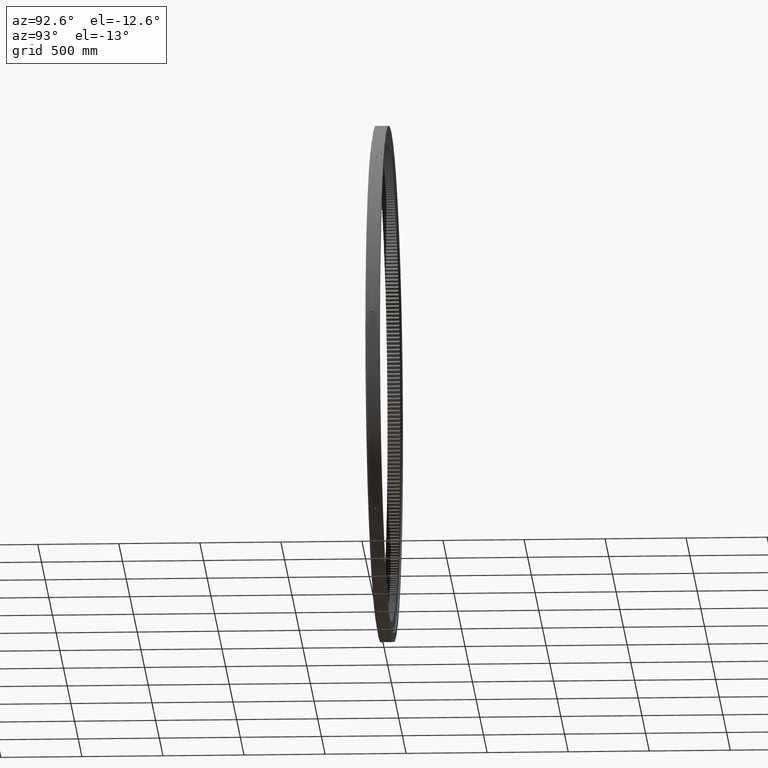
[diagram: clean part render]
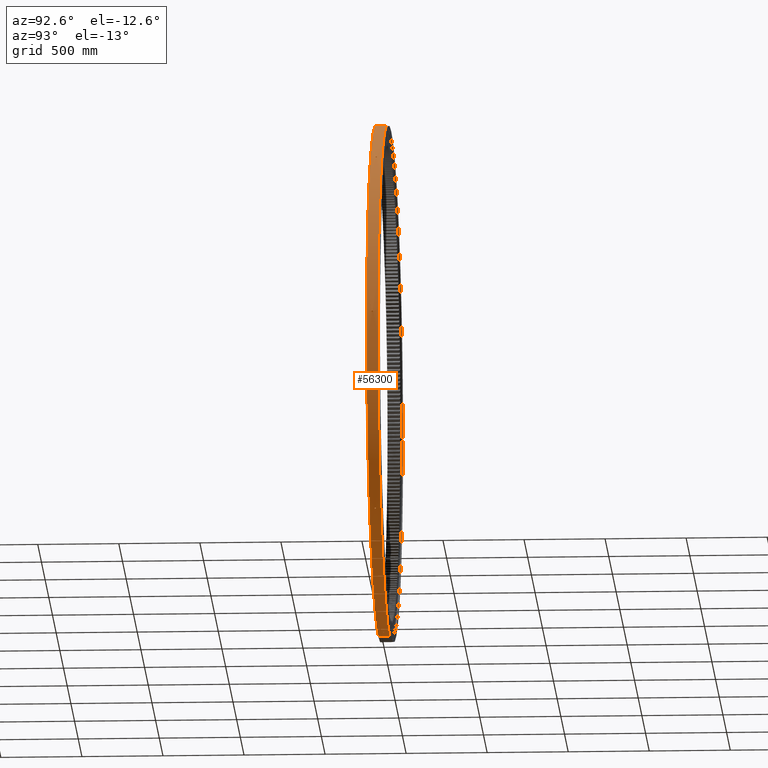
[diagram: same view with one face highlighted and labeled with its STEP entity id]
A machine part, auxiliary view. The second image highlights one B-rep face of the part: STEP entity #56300.
In plain terms, the highlighted cylindrical surface (partial cylindrical patch) has radius 1595 mm, axis along (0, -1, -0).
Its self-contained STEP definition (entity closure, byte-faithful):
#157 = CARTESIAN_POINT ( 'NONE',  ( 1591.584982565571400, -4.500000024368163500, 104.3179911220949700 ) ) ;
#191 = CARTESIAN_POINT ( 'NONE',  ( 1197.262126456714900, -3.431549648896958300, -1053.844568255367200 ) ) ;
#326 = CARTESIAN_POINT ( 'NONE',  ( 107.2271229534437300, 3.448184902226818900, -1591.391659614650700 ) ) ;
#351 = FACE_BOUND ( 'NONE', #9167, .T. ) ;
#592 = CARTESIAN_POINT ( 'NONE',  ( 108.5824699117302700, 1.438640024710587500, -1591.299665259467700 ) ) ;
#917 = CARTESIAN_POINT ( 'NONE',  ( 108.8079411900196000, -0.0005710084534734351500, -1591.284335120721600 ) ) ;
#1194 = CARTESIAN_POINT ( 'NONE',  ( 1591.359814183338400, 2.962314380724804700, 107.6984435171755200 ) ) ;
#1217 = CARTESIAN_POINT ( 'NONE',  ( 108.8016886211565300, -0.2571248973279439100, -1591.285199668105900 ) ) ;
#1322 = CARTESIAN_POINT ( 'NONE',  ( 1048.269111794850200, -0.001198387348096671300, 1202.146778104215400 ) ) ;
#1324 = CARTESIAN_POINT ( 'NONE',  ( 99.94421286973845000, 1.177865452787461500, -1591.867283864363600 ) ) ;
#1595 = CARTESIAN_POINT ( 'NONE',  ( 1048.698258008788100, -2.265791069455416600, 1201.775172557179100 ) ) ;
#1766 = CARTESIAN_POINT ( 'NONE',  ( 1196.216769485691000, -0.2514984799687300400, -1055.030680806861700 ) ) ;
#2255 = CARTESIAN_POINT ( 'NONE',  ( 1055.035669824897000, -2.739567968101367800E-008, 1196.212665363593300 ) ) ;
#2489 = EDGE_CURVE ( 'NONE', #65314, #79631, #57530, .T. ) ;
#2804 = VERTEX_POINT ( 'NONE', #41092 ) ;
#4082 = CARTESIAN_POINT ( 'NONE',  ( 101.2583125015243600, -3.294402693009392400, -1591.782569966173500 ) ) ;
#4129 = CARTESIAN_POINT ( 'NONE',  ( 1591.788944048853400, -3.197407758509164000, 101.1580816884632400 ) ) ;
#4169 = EDGE_LOOP ( 'NONE', ( #72388, #47858, #6057, #56257 ) ) ;
#4366 = CARTESIAN_POINT ( 'NONE',  ( 99.83364071400339400, -0.2514984799865838700, -1591.872338230788700 ) ) ;
#4381 = CARTESIAN_POINT ( 'NONE',  ( 1198.796106184638100, 4.499999975631832100, -1052.099445287768300 ) ) ;
#4423 = CARTESIAN_POINT ( 'NONE',  ( 1591.872840996959400, -0.06619520864764810700, 99.82766618104417900 ) ) ;
#4748 = CARTESIAN_POINT ( 'NONE',  ( 1201.328621111634400, 3.106785645860228300, -1049.206627123427800 ) ) ;
#4765 = CARTESIAN_POINT ( 'NONE',  ( 1049.255156623860600, 3.172686990489168600, 1201.286234148091100 ) ) ;
#5016 = EDGE_CURVE ( 'NONE', #20110, #73221, #66871, .T. ) ;
#5029 = CARTESIAN_POINT ( 'NONE',  ( 1202.146776261541800, 0.0002731160788612569900, -1048.269110268135800 ) ) ;
#5037 = CARTESIAN_POINT ( 'NONE',  ( 1591.732545242217600, 3.932038722735583700, 102.0565147758671000 ) ) ;
#5045 = CARTESIAN_POINT ( 'NONE',  ( 1048.298755811234700, 0.6262473214930401900, 1202.120600015267000 ) ) ;
#5072 = CARTESIAN_POINT ( 'NONE',  ( 1202.146609267668300, -0.06357894050224938100, -1048.269473592704100 ) ) ;
#5312 = CARTESIAN_POINT ( 'NONE',  ( 1591.556985666713000, 4.499999975631846300, 104.7451412550939000 ) ) ;
#5373 = CARTESIAN_POINT ( 'NONE',  ( 1199.184492928978200, -4.500000024368169700, -1051.656575084599100 ) ) ;
#5954 = CARTESIAN_POINT ( 'NONE',  ( 1051.978521671153700, -4.500000024368264700, 1198.902153350228900 ) ) ;
#6057 = ORIENTED_EDGE ( 'NONE', *, *, #78978, .T. ) ;
#6250 = CARTESIAN_POINT ( 'NONE',  ( 1054.003914615676900, -3.238286759096821000, 1197.121859678182100 ) ) ;
#6541 = CARTESIAN_POINT ( 'NONE',  ( 1055.033950223432400, -0.1436216789736150000, 1196.213963109808700 ) ) ;
#6553 = CARTESIAN_POINT ( 'NONE',  ( 1591.285919176941200, -0.3673143356667802900, 108.7936023818094600 ) ) ;
#6880 = CARTESIAN_POINT ( 'NONE',  ( 1197.160688818967600, -3.294402693008184400, -1053.959809976295700 ) ) ;
#7016 = CARTESIAN_POINT ( 'NONE',  ( 107.5024068776480600, 3.172484331763650200, -1591.373065177475600 ) ) ;
#7269 = CARTESIAN_POINT ( 'NONE',  ( 1199.184492928978200, 4.499999975631839200, -1051.656575084599400 ) ) ;
#7301 = EDGE_CURVE ( 'NONE', #14534, #47910, #82593, .T. ) ;
#7306 = CARTESIAN_POINT ( 'NONE',  ( 108.7684987169226800, 0.6260284809457495900, -1591.286784959932900 ) ) ;
#7531 = CARTESIAN_POINT ( 'NONE',  ( 1055.035669824897000, -2.739567968101367800E-008, 1196.212665363593300 ) ) ;
#7633 = CARTESIAN_POINT ( 'NONE',  ( 1591.523179662626300, 4.439736969396898700, 105.2568805644874500 ) ) ;
#7647 = CARTESIAN_POINT ( 'NONE',  ( 108.8079411102492900, 0.0001644125467779746100, -1591.284333951851100 ) ) ;
#7923 = CARTESIAN_POINT ( 'NONE',  ( 1591.347322861507100, 2.738034137860664100, 107.8829709428432700 ) ) ;
#7942 = CARTESIAN_POINT ( 'NONE',  ( 108.7720436949230800, -0.5871622389637735100, -1591.287705011971200 ) ) ;
#8043 = CARTESIAN_POINT ( 'NONE',  ( 100.7270566776401100, 2.765460214107008200, -1591.818225438491300 ) ) ;
#8302 = EDGE_CURVE ( 'NONE', #26163, #17360, #76444, .T. ) ;
#8326 = CARTESIAN_POINT ( 'NONE',  ( 1049.576475161524300, -3.598288527161696700, 1201.007284052720900 ) ) ;
#8482 = CARTESIAN_POINT ( 'NONE',  ( 1196.213397424717900, -0.1107752720367792800, -1055.034628656994800 ) ) ;
#8637 = ORIENTED_EDGE ( 'NONE', *, *, #49310, .F. ) ;
#8968 = CARTESIAN_POINT ( 'NONE',  ( 1054.948920508952100, 1.177865452787462600, 1196.291381830051300 ) ) ;
#9092 = EDGE_LOOP ( 'NONE', ( #27905, #41309, #40220, #69056 ) ) ;
#9167 = EDGE_LOOP ( 'NONE', ( #83593, #8637, #50906, #80074 ) ) ;
#10389 = EDGE_CURVE ( 'NONE', #17918, #61269, #31354, .T. ) ;
#10511 = CARTESIAN_POINT ( 'NONE',  ( 103.3785405565048400, -4.439702520761025000, -1591.646292158910900 ) ) ;
#10569 = CARTESIAN_POINT ( 'NONE',  ( 1591.646292158905700, -4.439702520778180200, 103.3785405565916600 ) ) ;
#10803 = CARTESIAN_POINT ( 'NONE',  ( 101.1705298368401900, -3.209744266266198600, -1591.788152875573400 ) ) ;
#10857 = CARTESIAN_POINT ( 'NONE',  ( 1591.789667398138800, -3.186076360708302200, 101.1466993568949400 ) ) ;
#11097 = CARTESIAN_POINT ( 'NONE',  ( 99.82846475522221400, -0.1107752720465600100, -1591.872745375209000 ) ) ;
#11155 = CARTESIAN_POINT ( 'NONE',  ( 1591.872924666912200, -0.02249341135530112300, 99.82725710846367000 ) ) ;
#11381 = CARTESIAN_POINT ( 'NONE',  ( 1051.656575084595300, 4.499999975631744100, 1199.184492928981900 ) ) ;
#11455 = DIRECTION ( 'NONE',  ( 1.173697223544192200E-016, -1.000000000000000000, -3.494217355385783800E-017 ) ) ;
#11470 = CARTESIAN_POINT ( 'NONE',  ( 1201.415491006057200, 2.962531083878329900, -1049.107158914350700 ) ) ;
#11483 = CARTESIAN_POINT ( 'NONE',  ( 1049.234767033757000, 3.145278498895814200, 1201.304043212008100 ) ) ;
#11515 = EDGE_CURVE ( 'NONE', #61269, #54273, #83683, .T. ) ;
#11735 = CARTESIAN_POINT ( 'NONE',  ( 1591.584982565571400, 4.499999975631845400, 104.3179911220949700 ) ) ;
#11765 = EDGE_CURVE ( 'NONE', #79631, #58532, #46086, .T. ) ;
#11766 = CARTESIAN_POINT ( 'NONE',  ( 1591.623508188772100, 4.499999975631845400, 103.7302036976026500 ) ) ;
#11779 = CARTESIAN_POINT ( 'NONE',  ( 1048.269003066273900, 0.09451856463356191100, 1202.146645311551100 ) ) ;
#11798 = CARTESIAN_POINT ( 'NONE',  ( 1202.142979293662800, -0.2567976739094111100, -1048.274129140256500 ) ) ;
#12146 = VERTEX_POINT ( 'NONE', #33136 ) ;
#12923 = CARTESIAN_POINT ( 'NONE',  ( 1054.035191020982000, -3.197407758508025400, 1197.094322088454600 ) ) ;
#13204 = CARTESIAN_POINT ( 'NONE',  ( 1055.035260948998700, -0.06619520863885425300, 1196.212900362289700 ) ) ;
#13221 = CARTESIAN_POINT ( 'NONE',  ( 1591.289358273121500, -0.7330188356979863200, 108.7504853333205500 ) ) ;
#13259 = CARTESIAN_POINT ( 'NONE',  ( 1198.563553492658500, -4.439702520758528300, -1052.364219379323900 ) ) ;
#13553 = CARTESIAN_POINT ( 'NONE',  ( 1197.102564814594200, -3.209744266265888200, -1054.025829406858500 ) ) ;
#13672 = CARTESIAN_POINT ( 'NONE',  ( 107.5294159047605800, 3.145073879398830700, -1591.371240568905900 ) ) ;
#13923 = AXIS2_PLACEMENT_3D ( 'NONE', #21168, #67580, #14440 ) ;
#13963 = CARTESIAN_POINT ( 'NONE',  ( 108.8079265897677600, 0.09437584088325379200, -1591.284165410107600 ) ) ;
#14240 = DIRECTION ( 'NONE',  ( 1.173697223544192200E-016, -1.000000000000000000, -3.494217355385783800E-017 ) ) ;
#14283 = CARTESIAN_POINT ( 'NONE',  ( 1591.448794150026300, 4.014184327729646300, 106.3746114451754600 ) ) ;
#14440 = DIRECTION ( 'NONE',  ( 5.551115123125782700E-017, -3.480322961207387600E-017, 1.000000000000000000 ) ) ;
#14534 = VERTEX_POINT ( 'NONE', #49916 ) ;
#14574 = CARTESIAN_POINT ( 'NONE',  ( 1591.326561711476600, 2.288796848061201800, 108.1888617296782200 ) ) ;
#14596 = CARTESIAN_POINT ( 'NONE',  ( 108.6645640317281200, -1.166356676480627500, -1591.295685753620500 ) ) ;
#14693 = CARTESIAN_POINT ( 'NONE',  ( 1048.269155181663600, -0.01755522773109333800, 1202.146779089530600 ) ) ;
#14696 = CARTESIAN_POINT ( 'NONE',  ( 102.0565147758615400, 3.932038722735474500, -1591.732545242218100 ) ) ;
#14965 = CARTESIAN_POINT ( 'NONE',  ( 1050.770814708510400, -4.382848393356273900, 1199.961107986976000 ) ) ;
#15115 = CARTESIAN_POINT ( 'NONE',  ( 1196.212740296112300, -0.04507731737129712400, -1055.035480072689300 ) ) ;
#15135 = ORIENTED_EDGE ( 'NONE', *, *, #86632, .F. ) ;
#15601 = CARTESIAN_POINT ( 'NONE',  ( 1054.360676798165700, 2.765460214107005500, 1196.810246449620100 ) ) ;
#16931 = CARTESIAN_POINT ( 'NONE',  ( 1591.584982565571400, -4.500000024368163500, 104.3179911220949700 ) ) ;
#17028 = B_SPLINE_CURVE_WITH_KNOTS ( 'NONE', 3,
 ( #64851, #58180, #78269, #38261, #84978, #44990, #5037, #51747, #11766, #58461 ),
 .UNSPECIFIED., .F., .F.,
 ( 4, 2, 2, 2, 4 ),
 ( 0.5001327926868667200, 0.6250995945151500700, 0.7500663963434333100, 0.8750331981717166500, 1.000000000000000000 ),
 .UNSPECIFIED. ) ;
#17202 = CARTESIAN_POINT ( 'NONE',  ( 1591.718501871046600, -4.013417103109413000, 102.2596337892571900 ) ) ;
#17360 = VERTEX_POINT ( 'NONE', #73779 ) ;
#17450 = CARTESIAN_POINT ( 'NONE',  ( 101.1497920139296800, -3.189160287234549700, -1591.789470869469800 ) ) ;
#17465 = CARTESIAN_POINT ( 'NONE',  ( 1196.212665363590100, -2.739558418392090200E-008, -1055.035669824900900 ) ) ;
#17506 = CARTESIAN_POINT ( 'NONE',  ( 1591.828296422387900, -2.460532258733803900, 100.5374887743919200 ) ) ;
#17565 = VERTEX_POINT ( 'NONE', #62410 ) ;
#17745 = CARTESIAN_POINT ( 'NONE',  ( 99.82739805331768000, -0.04507731737581493300, -1591.872882756927500 ) ) ;
#17795 = CARTESIAN_POINT ( 'NONE',  ( 1591.872952548652600, -0.007205812987911403500, 99.82721568749985900 ) ) ;
#17850 = CARTESIAN_POINT ( 'NONE',  ( 1199.804653960897000, 4.439742744211541100, -1050.949016190000500 ) ) ;
#17860 = CARTESIAN_POINT ( 'NONE',  ( 1051.656575084595300, 4.499999975631744100, 1199.184492928981900 ) ) ;
#17918 = VERTEX_POINT ( 'NONE', #53323 ) ;
#18125 = CARTESIAN_POINT ( 'NONE',  ( 1201.537147945567500, 2.738263488281573700, -1048.967835295780800 ) ) ;
#18140 = CARTESIAN_POINT ( 'NONE',  ( 1049.151769863695300, 3.029408991192229300, 1201.376532315964800 ) ) ;
#18304 = LINE ( 'NONE', #24928, #51778 ) ;
#18459 = CARTESIAN_POINT ( 'NONE',  ( 1202.109734197083500, -0.7327181281982294600, -1048.313252631083100 ) ) ;
#19351 = CARTESIAN_POINT ( 'NONE',  ( 1052.364219379316600, -4.439702520759494700, 1198.563553492664100 ) ) ;
#19635 = CARTESIAN_POINT ( 'NONE',  ( 1054.043751030003500, -3.186076360708539800, 1197.086785049801800 ) ) ;
#19648 = CARTESIAN_POINT ( 'NONE',  ( 1591.284335120718700, -0.0005710068643074166400, 108.8079411900251500 ) ) ;
#19686 = B_SPLINE_CURVE_WITH_KNOTS ( 'NONE', 3,
 ( #50880, #84400, #17850, #64551, #24599, #71281, #31256, #77971, #37961, #84692, #44671, #4748, #51455, #11470, #58174, #18125, #64846, #24882, #71553, #31541, #78263, #38254, #84974, #44985, #5029 ),
 .UNSPECIFIED., .F., .F.,
 ( 4, 2, 2, 2, 2, 1, 1, 1, 2, 2, 2, 2, 2, 4 ),
 ( 0.0000000000000000000, 0.1250459271490333400, 0.1875688907235814100, 0.2500918542981295200, 0.2510687756039750000, 0.2520456969098204800, 0.2539995395215115000, 0.2579072247448952500, 0.2657225951916628600, 0.2813533360851979700, 0.3126148178722544800, 0.3751377814463441300, 0.4376607450204337800, 0.5001837085945234400 ),
 .UNSPECIFIED. ) ;
#19941 = CARTESIAN_POINT ( 'NONE',  ( 1055.035609370585900, -0.02249341135224907200, 1196.212670267885000 ) ) ;
#19956 = CARTESIAN_POINT ( 'NONE',  ( 1591.301732014156900, -1.449584376875645800, 108.5788885954014100 ) ) ;
#19989 = CARTESIAN_POINT ( 'NONE',  ( 1198.902153350223700, -4.500000024368168800, -1051.978521671160000 ) ) ;
#20110 = VERTEX_POINT ( 'NONE', #80346 ) ;
#20116 = CARTESIAN_POINT ( 'NONE',  ( 105.2568805652063000, 4.439736969312988900, -1591.523179662579400 ) ) ;
#20165 = CARTESIAN_POINT ( 'NONE',  ( 104.3179911220894400, 4.499999975631729900, -1591.584982565571900 ) ) ;
#20274 = CARTESIAN_POINT ( 'NONE',  ( 1197.088832921808700, -3.189160287234398300, -1054.041425224487700 ) ) ;
#20407 = CARTESIAN_POINT ( 'NONE',  ( 107.6393547917381000, 3.029196455475076500, -1591.363810674115700 ) ) ;
#21014 = CARTESIAN_POINT ( 'NONE',  ( 1591.391659614796000, 3.448184904012855200, 107.2271229512933000 ) ) ;
#21168 = CARTESIAN_POINT ( 'NONE',  ( 2.601341135008604100E-015, -22.16364734299516900, -7.744460120454373600E-016 ) ) ;
#21302 = CARTESIAN_POINT ( 'NONE',  ( 1591.299665259553400, 1.438640028472520000, 108.5824699104874600 ) ) ;
#21321 = CARTESIAN_POINT ( 'NONE',  ( 108.2416069995418200, -2.265987769573782500, -1591.325031590793300 ) ) ;
#21423 = CARTESIAN_POINT ( 'NONE',  ( 1048.269473592700300, -0.06357894050250180500, 1202.146609267671500 ) ) ;
#21425 = CARTESIAN_POINT ( 'NONE',  ( 103.7302036975970800, 4.499999975631732600, -1591.623508188772100 ) ) ;
#21719 = CARTESIAN_POINT ( 'NONE',  ( 1051.656575084595300, -4.500000024368264700, 1199.184492928981900 ) ) ;
#21874 = CARTESIAN_POINT ( 'NONE',  ( 1196.212660146020000, -0.01171504269939747100, -1055.035647320934500 ) ) ;
#22360 = CARTESIAN_POINT ( 'NONE',  ( 1053.360022913812600, 3.932038722735474500, 1197.689730238377500 ) ) ;
#22995 = CARTESIAN_POINT ( 'NONE',  ( 1591.872963946707400, -2.739557636407724300E-008, 99.82721089295226600 ) ) ;
#23805 = B_SPLINE_CURVE_WITH_KNOTS ( 'NONE', 3,
 ( #47988, #1322, #54743, #14693, #61414, #21423, #68130, #28132, #74797, #34790, #81537, #41498, #1595, #48287, #8326, #55030, #14965, #61712, #21719 ),
 .UNSPECIFIED., .F., .F.,
 ( 4, 2, 1, 1, 1, 1, 1, 2, 2, 2, 2, 4 ),
 ( 0.5001837085945346500, 0.5011599122886857300, 0.5021361159828369200, 0.5040885233711394100, 0.5079933381477446100, 0.5158029677009557900, 0.5314222268073779400, 0.5626607450202254500, 0.6251377814459133700, 0.7500918542972755400, 0.8750459271486377100, 1.000000000000000000 ),
 .UNSPECIFIED. ) ;
#23926 = CARTESIAN_POINT ( 'NONE',  ( 102.5466701354158200, -4.145601375008047800, -1591.700020077305500 ) ) ;
#23980 = CARTESIAN_POINT ( 'NONE',  ( 1591.755028339029200, -3.653221515567290900, 101.6899538530320800 ) ) ;
#24175 = EDGE_CURVE ( 'NONE', #68435, #2804, #23805, .T. ) ;
#24214 = CARTESIAN_POINT ( 'NONE',  ( 100.7923211138022600, -2.830677936484032200, -1591.812184430277700 ) ) ;
#24233 = CARTESIAN_POINT ( 'NONE',  ( 1196.213461656830800, 0.5890485953953412700, -1055.036368145962800 ) ) ;
#24271 = CARTESIAN_POINT ( 'NONE',  ( 1591.858763504873900, -1.437043034201128400, 100.0522471487737400 ) ) ;
#24495 = CARTESIAN_POINT ( 'NONE',  ( 99.82722311627507800, -0.01171504270057433800, -1591.872944344620700 ) ) ;
#24549 = CARTESIAN_POINT ( 'NONE',  ( 1591.872957380995800, -0.004604414827473150100, 99.82721047007171900 ) ) ;
#24599 = CARTESIAN_POINT ( 'NONE',  ( 1200.542370640011300, 4.014239206405103600, -1050.106108271921100 ) ) ;
#24882 = CARTESIAN_POINT ( 'NONE',  ( 1201.738784628826600, 2.289044582971130600, -1048.736835126257300 ) ) ;
#24895 = CARTESIAN_POINT ( 'NONE',  ( 1049.021062674261400, 2.828326222548945200, 1201.490674017285500 ) ) ;
#24922 = CARTESIAN_POINT ( 'NONE',  ( 1202.146776261541800, 0.0002731160788612569900, -1048.269110268135800 ) ) ;
#24928 = CARTESIAN_POINT ( 'NONE',  ( 9.114162734886484400E-014, -22.16364734299522300, 1595.000000000000000 ) ) ;
#25217 = CARTESIAN_POINT ( 'NONE',  ( 1201.997171496609100, -1.449329242002410600, -1048.443311106539800 ) ) ;
#26094 = CARTESIAN_POINT ( 'NONE',  ( 1053.206465919125100, -4.013417103070851000, 1197.823426907099200 ) ) ;
#26163 = VERTEX_POINT ( 'NONE', #20165 ) ;
#26372 = CARTESIAN_POINT ( 'NONE',  ( 1054.501842809070500, -2.460532258711867600, 1196.683322960730700 ) ) ;
#26387 = CARTESIAN_POINT ( 'NONE',  ( 1591.284333951849200, 0.0001644141411306262700, 108.8079411102540200 ) ) ;
#26666 = CARTESIAN_POINT ( 'NONE',  ( 1055.035658374998100, -0.007205812987181987900, 1196.212660694207900 ) ) ;
#26680 = CARTESIAN_POINT ( 'NONE',  ( 1591.347505258397600, -2.765224146039055400, 107.9088368962727300 ) ) ;
#26711 = CARTESIAN_POINT ( 'NONE',  ( 1198.013323652274300, -4.145601375003455000, -1052.990431970579900 ) ) ;
#26999 = CARTESIAN_POINT ( 'NONE',  ( 1196.852123737118500, -2.830677936476460000, -1054.310256234922500 ) ) ;
#27134 = CARTESIAN_POINT ( 'NONE',  ( 107.8124771126514100, 2.828101592828193400, -1591.352097898280400 ) ) ;
#27733 = CARTESIAN_POINT ( 'NONE',  ( 1591.373065177674800, 3.172484334735985000, 107.5024068747057800 ) ) ;
#27754 = CARTESIAN_POINT ( 'NONE',  ( 108.8079343340725800, -0.008689904421740822900, -1591.284350176472300 ) ) ;
#27905 = ORIENTED_EDGE ( 'NONE', *, *, #38922, .F. ) ;
#28015 = CARTESIAN_POINT ( 'NONE',  ( 1591.286784959962500, 0.6260284841563464900, 108.7684987164942900 ) ) ;
#28031 = CARTESIAN_POINT ( 'NONE',  ( 107.0776361697520500, -3.598372993745741200, -1591.403045452660300 ) ) ;
#28132 = CARTESIAN_POINT ( 'NONE',  ( 1048.274129140252600, -0.2567976739096589600, 1202.142979293666700 ) ) ;
#28569 = CARTESIAN_POINT ( 'NONE',  ( 1196.212662096986200, -0.004224121743458180400, -1055.035664641804000 ) ) ;
#29039 = CARTESIAN_POINT ( 'NONE',  ( 1052.099445287764600, 4.499999975631739700, 1198.796106184641500 ) ) ;
#30592 = CARTESIAN_POINT ( 'NONE',  ( 101.8319569972860600, -3.751236669444648200, -1591.745936476745600 ) ) ;
#30642 = CARTESIAN_POINT ( 'NONE',  ( 1591.772809005347900, -3.431549648915654100, 101.4115279454138400 ) ) ;
#30659 = ORIENTED_EDGE ( 'NONE', *, *, #5016, .F. ) ;
#30863 = CARTESIAN_POINT ( 'NONE',  ( 100.1679126970225300, -1.763920608159727600, -1591.851555750366500 ) ) ;
#30885 = CARTESIAN_POINT ( 'NONE',  ( 1196.589832705673200, 2.266285385526720700, -1054.611008152275600 ) ) ;
#30924 = CARTESIAN_POINT ( 'NONE',  ( 1591.870246164689000, -0.6256159857545274800, 99.86659497444003400 ) ) ;
#31152 = CARTESIAN_POINT ( 'NONE',  ( 99.82721224811228900, -0.004224121743821850400, -1591.872957971867000 ) ) ;
#31256 = CARTESIAN_POINT ( 'NONE',  ( 1201.104762801364600, 3.448306740749433000, -1049.462919266193500 ) ) ;
#31271 = CARTESIAN_POINT ( 'NONE',  ( 1050.322358062519900, 4.146168419476181200, 1200.353163994562200 ) ) ;
#31354 = B_SPLINE_CURVE_WITH_KNOTS ( 'NONE', 3,
 ( #26387, #19648, #86232, #73055, #33054, #79789, #39784, #86504, #46516, #6553, #53262, #13221, #59962, #19956, #66639, #26680, #73340, #33342, #80072, #40048, #157 ),
 .UNSPECIFIED., .F., .F.,
 ( 4, 2, 1, 1, 1, 1, 1, 2, 2, 2, 2, 2, 4 ),
 ( 0.5002077525682235800, 0.5006958309348561500, 0.5011839093014888200, 0.5021600660347540500, 0.5041123795012844000, 0.5080170064343451100, 0.5158262603004666300, 0.5314447680327095700, 0.5626817834971953300, 0.6251558144261669700, 0.7501038762841112400, 0.8750519381420556200, 1.000000000000000000 ),
 .UNSPECIFIED. ) ;
#31541 = CARTESIAN_POINT ( 'NONE',  ( 1201.998128961886300, 1.438896447909288500, -1048.439447731605900 ) ) ;
#31563 = CARTESIAN_POINT ( 'NONE',  ( 1048.819858614492700, 2.468410599288049400, 1201.666331362899900 ) ) ;
#31578 = CIRCLE ( 'NONE', #81301, 1595.000000000000000 ) ;
#31872 = CARTESIAN_POINT ( 'NONE',  ( 1201.555764462725200, -2.765068120410617300, -1048.949448117267100 ) ) ;
#31993 = EDGE_CURVE ( 'NONE', #73221, #33816, #80534, .T. ) ;
#32583 = CARTESIAN_POINT ( 'NONE',  ( -4.107940282404704600E-015, 35.00000000000027700, 1.222976074385033900E-015 ) ) ;
#32748 = CARTESIAN_POINT ( 'NONE',  ( 1053.635118578315500, -3.653221515537524100, 1197.446430474314000 ) ) ;
#33037 = CARTESIAN_POINT ( 'NONE',  ( 1054.866503933687000, -1.437043034158052700, 1196.361748797371300 ) ) ;
#33054 = CARTESIAN_POINT ( 'NONE',  ( 1591.284363519316500, -0.01559330112347804200, 108.8079200800836600 ) ) ;
#33136 = CARTESIAN_POINT ( 'NONE',  ( 1591.584982565571400, 4.499999975631845400, 104.3179911220949700 ) ) ;
#33206 = EDGE_LOOP ( 'NONE', ( #15135, #45777, #30659, #72009 ) ) ;
#33329 = CARTESIAN_POINT ( 'NONE',  ( 1055.035665481259700, -0.004604414827580467900, 1196.212660421912000 ) ) ;
#33342 = CARTESIAN_POINT ( 'NONE',  ( 1591.436090535503100, -3.931957555998012200, 106.5795327157697700 ) ) ;
#33379 = CARTESIAN_POINT ( 'NONE',  ( 1197.540412943114000, -3.751236669440329000, -1053.528278274562800 ) ) ;
#33506 = CARTESIAN_POINT ( 'NONE',  ( 106.0878952584033400, 4.146128968359527700, -1591.467917568864800 ) ) ;
#33715 = B_SPLINE_CURVE_WITH_KNOTS ( 'NONE', 3,
 ( #17860, #57895, #71301, #31271, #77987, #37972, #84704, #44685, #4765, #51476, #11483, #58188, #18140, #64858, #24895, #71571, #31563, #78280, #38271, #84986, #44998, #5045, #51759, #11779, #58471 ),
 .UNSPECIFIED., .F., .F.,
 ( 4, 2, 2, 2, 2, 1, 1, 1, 2, 2, 2, 2, 2, 4 ),
 ( 0.0000000000000000000, 0.1250459271499839700, 0.1875688907249759600, 0.2500918542999679400, 0.2510687756058078100, 0.2520456969116476900, 0.2539995395233292700, 0.2579072247466943600, 0.2657225951933969200, 0.2813533360868021300, 0.3126148178736264400, 0.3751377814472625100, 0.4376607450208985800, 0.5001837085945346500 ),
 .UNSPECIFIED. ) ;
#33787 = CARTESIAN_POINT ( 'NONE',  ( 108.0789353225271600, 2.468168814409154700, -1591.334035171874800 ) ) ;
#33816 = VERTEX_POINT ( 'NONE', #7269 ) ;
#33948 = CARTESIAN_POINT ( 'NONE',  ( 1048.269110268132400, 0.0002731160787556435600, 1202.146776261545300 ) ) ;
#34396 = CARTESIAN_POINT ( 'NONE',  ( 1591.371240569103500, 3.145073882399936700, 107.5294159018402700 ) ) ;
#34412 = CARTESIAN_POINT ( 'NONE',  ( 108.8078498307850300, -0.03170113386103502700, -1591.284397034628500 ) ) ;
#34506 = CARTESIAN_POINT ( 'NONE',  ( 99.82721089294740600, -2.739569063866843400E-008, -1591.872963946707800 ) ) ;
#34682 = CARTESIAN_POINT ( 'NONE',  ( 1591.284165410108200, 0.09437584297668084900, 108.8079265897398800 ) ) ;
#34697 = CARTESIAN_POINT ( 'NONE',  ( 105.4934115613015300, -4.382859803229028000, -1591.507808887178500 ) ) ;
#34790 = CARTESIAN_POINT ( 'NONE',  ( 1048.313252631078500, -0.7327181281984608300, 1202.109734197087400 ) ) ;
#34945 = CARTESIAN_POINT ( 'NONE',  ( 1196.261963106816900, -0.8681628797521988600, -1054.979486362710100 ) ) ;
#35227 = CARTESIAN_POINT ( 'NONE',  ( 1196.212665363590100, -2.739558418392090200E-008, -1055.035669824900900 ) ) ;
#35771 = FACE_BOUND ( 'NONE', #33206, .T. ) ;
#36186 = ORIENTED_EDGE ( 'NONE', *, *, #47145, .F. ) ;
#37281 = CARTESIAN_POINT ( 'NONE',  ( 101.4806661344691700, -3.489101883580750600, -1591.768397640372100 ) ) ;
#37331 = CARTESIAN_POINT ( 'NONE',  ( 1591.782569966172600, -3.294402693017203000, 101.2583125015383100 ) ) ;
#37567 = CARTESIAN_POINT ( 'NONE',  ( 99.90179736859190000, -0.8681628797834344300, -1591.868095008134600 ) ) ;
#37592 = CARTESIAN_POINT ( 'NONE',  ( 1197.360303271498400, 3.598500765654093500, -1053.735060965220300 ) ) ;
#37598 = VECTOR ( 'NONE', #11455, 1000.000000000000000 ) ;
#37620 = CARTESIAN_POINT ( 'NONE',  ( 1591.872338230789000, -0.2514984800084052500, 99.83364071401014400 ) ) ;
#37858 = CARTESIAN_POINT ( 'NONE',  ( 99.82721089294740600, -2.739569063866843400E-008, -1591.872963946707800 ) ) ;
#37961 = CARTESIAN_POINT ( 'NONE',  ( 1201.286234148087500, 3.172686990488981600, -1049.255156623864900 ) ) ;
#37972 = CARTESIAN_POINT ( 'NONE',  ( 1049.676388706650000, 3.665395412485254100, 1200.918170189962200 ) ) ;
#38254 = CARTESIAN_POINT ( 'NONE',  ( 1202.120600015266100, 0.6262473214559860500, -1048.298755811235200 ) ) ;
#38261 = CARTESIAN_POINT ( 'NONE',  ( 1591.839380383513100, 2.266285385526740200, 100.3941896266055700 ) ) ;
#38271 = CARTESIAN_POINT ( 'NONE',  ( 1048.527057111520400, 1.766151685862260600, 1201.921794033884000 ) ) ;
#38295 = CARTESIAN_POINT ( 'NONE',  ( 1202.146784151701900, -0.008350268173541154600, -1048.269124380179200 ) ) ;
#38583 = CARTESIAN_POINT ( 'NONE',  ( 1200.678427957997200, -3.931903888289439000, -1049.952065544702700 ) ) ;
#38922 = EDGE_CURVE ( 'NONE', #12146, #17918, #39869, .T. ) ;
#39291 = DIRECTION ( 'NONE',  ( -5.551115123125783900E-017, 8.700807403018468000E-017, -1.000000000000000000 ) ) ;
#39467 = CARTESIAN_POINT ( 'NONE',  ( 1053.844568255362000, -3.431549648897849200, 1197.262126456719000 ) ) ;
#39769 = CARTESIAN_POINT ( 'NONE',  ( 1055.005899311715200, -0.6256159857133383200, 1196.238592352585300 ) ) ;
#39784 = CARTESIAN_POINT ( 'NONE',  ( 1591.284473592968700, -0.06391589159199839700, 108.8075613747650400 ) ) ;
#39869 = B_SPLINE_CURVE_WITH_KNOTS ( 'NONE', 3,
 ( #11735, #5312, #7633, #54330, #14283, #61008, #21014, #67715, #27733, #74392, #34396, #81118, #41100, #1194, #47872, #7923, #54623, #14574, #61302, #21302, #68012, #28015, #74676, #34682, #81421 ),
 .UNSPECIFIED., .F., .F.,
 ( 4, 2, 2, 2, 2, 1, 1, 1, 2, 2, 2, 2, 2, 4 ),
 ( 0.0000000000000000000, 0.1250519381420636400, 0.1875779072130940300, 0.2501038762841243900, 0.2510808445508588300, 0.2520578128175932600, 0.2540117493510634100, 0.2579196224180037600, 0.2657353685518831200, 0.2813668608196404600, 0.3126298453551528100, 0.3751558144261764000, 0.4376817834972000500, 0.5002077525682235800 ),
 .UNSPECIFIED. ) ;
#40048 = CARTESIAN_POINT ( 'NONE',  ( 1591.546454137272300, -4.500000024368166200, 104.9058213441172600 ) ) ;
#40087 = CARTESIAN_POINT ( 'NONE',  ( 1197.307895232962400, -3.489101883577961700, -1053.792560866941100 ) ) ;
#40207 = CARTESIAN_POINT ( 'NONE',  ( 106.9442255211330900, 3.665299363380975200, -1591.410665157945500 ) ) ;
#40220 = ORIENTED_EDGE ( 'NONE', *, *, #11515, .F. ) ;
#40500 = CARTESIAN_POINT ( 'NONE',  ( 108.4665677734379900, 1.765893093894089500, -1591.307635888768600 ) ) ;
#40579 = CARTESIAN_POINT ( 'NONE',  ( 1202.146776261541800, 0.0002731160788612569900, -1048.269110268135800 ) ) ;
#41092 = CARTESIAN_POINT ( 'NONE',  ( 1051.656575084595300, -4.500000024368264700, 1199.184492928981900 ) ) ;
#41100 = CARTESIAN_POINT ( 'NONE',  ( 1591.363810674306700, 3.029196458592387400, 107.6393547889132100 ) ) ;
#41116 = CARTESIAN_POINT ( 'NONE',  ( 108.8063926667291700, -0.1283382115538233800, -1591.284664818444100 ) ) ;
#41309 = ORIENTED_EDGE ( 'NONE', *, *, #80402, .F. ) ;
#41402 = CARTESIAN_POINT ( 'NONE',  ( 104.3179911220894400, -4.500000024368279000, -1591.584982565571900 ) ) ;
#41408 = EDGE_CURVE ( 'NONE', #17565, #65314, #31578, .T. ) ;
#41498 = CARTESIAN_POINT ( 'NONE',  ( 1048.443311106535900, -1.449329242002614900, 1201.997171496612700 ) ) ;
#41648 = CARTESIAN_POINT ( 'NONE',  ( 1196.220094737243000, -0.3358848176164467800, -1055.026883941167400 ) ) ;
#41947 = CARTESIAN_POINT ( 'NONE',  ( 9.264822649626086500E-014, -34.99999999999975100, 1595.000000000000000 ) ) ;
#42023 = CARTESIAN_POINT ( 'NONE',  ( 1591.584982565571400, -4.500000024368163500, 104.3179911220949700 ) ) ;
#44019 = CARTESIAN_POINT ( 'NONE',  ( 101.3091606852865600, -3.340847074188759300, -1591.779332006238700 ) ) ;
#44070 = CARTESIAN_POINT ( 'NONE',  ( 1591.788152875572700, -3.209744266268121900, 101.1705298368478300 ) ) ;
#44287 = CARTESIAN_POINT ( 'NONE',  ( 99.83867681140569100, -0.3358848176375853200, -1591.872004749231100 ) ) ;
#44308 = CARTESIAN_POINT ( 'NONE',  ( 1198.407772876300200, 4.382877020533871200, -1052.542054088607500 ) ) ;
#44338 = CARTESIAN_POINT ( 'NONE',  ( 1591.872745375208800, -0.1107752720584022800, 99.82846475522808300 ) ) ;
#44671 = CARTESIAN_POINT ( 'NONE',  ( 1201.304043212005800, 3.145278498894879900, -1049.234767033760100 ) ) ;
#44685 = CARTESIAN_POINT ( 'NONE',  ( 1049.260172009344400, 3.179367126454073500, 1201.281853460627900 ) ) ;
#44985 = CARTESIAN_POINT ( 'NONE',  ( 1202.146645311547000, 0.09451856462004640200, -1048.269003066277700 ) ) ;
#44990 = CARTESIAN_POINT ( 'NONE',  ( 1591.764797149385900, 3.598500765654117000, 101.5583827843328900 ) ) ;
#44998 = CARTESIAN_POINT ( 'NONE',  ( 1048.325455229121400, 0.8692167346534744900, 1202.097393260803800 ) ) ;
#45023 = CARTESIAN_POINT ( 'NONE',  ( 1202.146757511202800, -0.03136260609426113500, -1048.269217294070600 ) ) ;
#45312 = CARTESIAN_POINT ( 'NONE',  ( 1199.572926638083600, -4.500000024368178600, -1051.213651328380100 ) ) ;
#45531 = CARTESIAN_POINT ( 'NONE',  ( 1196.212665363590100, -2.739558418392090200E-008, -1055.035669824900900 ) ) ;
#45777 = ORIENTED_EDGE ( 'NONE', *, *, #31993, .F. ) ;
#46086 = CIRCLE ( 'NONE', #48679, 1595.000000000000000 ) ;
#46205 = CARTESIAN_POINT ( 'NONE',  ( 1053.959809976291400, -3.294402693008718700, 1197.160688818971000 ) ) ;
#46500 = CARTESIAN_POINT ( 'NONE',  ( 1055.030680806856900, -0.2514984799830497500, 1196.216769485695100 ) ) ;
#46516 = CARTESIAN_POINT ( 'NONE',  ( 1591.285199668079300, -0.2571248925288311900, 108.8016886214370400 ) ) ;
#46835 = CARTESIAN_POINT ( 'NONE',  ( 1197.194354331089200, -3.340847074187175200, -1053.921565297320300 ) ) ;
#46968 = CARTESIAN_POINT ( 'NONE',  ( 107.4957144756807100, 3.179213886528976300, -1591.373517244639500 ) ) ;
#47145 = EDGE_CURVE ( 'NONE', #80997, #68435, #33715, .T. ) ;
#47266 = CARTESIAN_POINT ( 'NONE',  ( 108.7332254941681500, 0.8689802471218477400, -1591.289253551921500 ) ) ;
#47795 = CARTESIAN_POINT ( 'NONE',  ( 99.82721089294740600, -2.739569063866843400E-008, -1591.872963946707800 ) ) ;
#47858 = ORIENTED_EDGE ( 'NONE', *, *, #41408, .F. ) ;
#47872 = CARTESIAN_POINT ( 'NONE',  ( 1591.352097898460000, 2.828101596123032900, 107.8124771100022600 ) ) ;
#47886 = CARTESIAN_POINT ( 'NONE',  ( 108.7936023814184900, -0.3673143403795299800, -1591.285919176975100 ) ) ;
#47910 = VERTEX_POINT ( 'NONE', #47795 ) ;
#47988 = CARTESIAN_POINT ( 'NONE',  ( 1048.269110268132400, 0.0002731160787556435600, 1202.146776261545300 ) ) ;
#47992 = CARTESIAN_POINT ( 'NONE',  ( 100.3941896265999700, 2.266285385526630100, -1591.839380383512400 ) ) ;
#48284 = ORIENTED_EDGE ( 'NONE', *, *, #61888, .F. ) ;
#48287 = CARTESIAN_POINT ( 'NONE',  ( 1048.949448117262800, -2.765068120410771900, 1201.555764462728800 ) ) ;
#48427 = CARTESIAN_POINT ( 'NONE',  ( 1196.213963109804600, -0.1436216789640444300, -1055.033950223436500 ) ) ;
#48679 = AXIS2_PLACEMENT_3D ( 'NONE', #54286, #14240, #60971 ) ;
#49310 = EDGE_CURVE ( 'NONE', #47910, #26163, #55681, .T. ) ;
#49414 = CYLINDRICAL_SURFACE ( 'NONE', #13923, 1595.000000000000000 ) ;
#49510 = EDGE_CURVE ( 'NONE', #49721, #20110, #82452, .T. ) ;
#49721 = VERTEX_POINT ( 'NONE', #40579 ) ;
#49916 = CARTESIAN_POINT ( 'NONE',  ( 104.3179911220894400, -4.500000024368279000, -1591.584982565571900 ) ) ;
#50783 = CARTESIAN_POINT ( 'NONE',  ( 101.1996694631732100, -3.238286759097278800, -1591.786300307005100 ) ) ;
#50838 = CARTESIAN_POINT ( 'NONE',  ( 1591.789470869469400, -3.189160287234970200, 101.1497920139358100 ) ) ;
#50880 = CARTESIAN_POINT ( 'NONE',  ( 1199.184492928978200, 4.499999975631839200, -1051.656575084599400 ) ) ;
#50906 = ORIENTED_EDGE ( 'NONE', *, *, #7301, .F. ) ;
#51061 = CARTESIAN_POINT ( 'NONE',  ( 99.82934447995283700, -0.1436216789759673700, -1591.872665650000500 ) ) ;
#51078 = CARTESIAN_POINT ( 'NONE',  ( 1199.184492928978200, 4.499999975631839200, -1051.656575084599400 ) ) ;
#51114 = CARTESIAN_POINT ( 'NONE',  ( 1591.872882756926900, -0.04507731738114948600, 99.82739805332332100 ) ) ;
#51440 = CARTESIAN_POINT ( 'NONE',  ( -2.812701095428504500E-013, -22.16364734299511200, -1595.000000000000000 ) ) ;
#51455 = CARTESIAN_POINT ( 'NONE',  ( 1201.376532315963700, 3.029408991188018400, -1049.151769863696500 ) ) ;
#51476 = CARTESIAN_POINT ( 'NONE',  ( 1049.246980291547700, 3.161729909471465500, 1201.293375706155100 ) ) ;
#51515 = FACE_BOUND ( 'NONE', #9092, .T. ) ;
#51747 = CARTESIAN_POINT ( 'NONE',  ( 1591.661886757571400, 4.382877020533886300, 103.1426388974305400 ) ) ;
#51759 = CARTESIAN_POINT ( 'NONE',  ( 1048.270576059543800, 0.2391081467918897700, 1202.145185410554400 ) ) ;
#51778 = VECTOR ( 'NONE', #71328, 1000.000000000000000 ) ;
#51782 = CARTESIAN_POINT ( 'NONE',  ( 1202.145921226726400, -0.1280044427701626800, -1048.270431642995200 ) ) ;
#52541 = EDGE_CURVE ( 'NONE', #17360, #14534, #75070, .T. ) ;
#52599 = CARTESIAN_POINT ( 'NONE',  ( 1196.438440038800500, -1.763920608133007900, -1054.779619388079900 ) ) ;
#52682 = CARTESIAN_POINT ( 'NONE',  ( 1051.656575084595300, -4.500000024368264700, 1199.184492928981900 ) ) ;
#52969 = CARTESIAN_POINT ( 'NONE',  ( 1054.025829406854200, -3.209744266265967200, 1197.102564814597100 ) ) ;
#53247 = CARTESIAN_POINT ( 'NONE',  ( 1055.034628656990200, -0.1107752720446322800, 1196.213397424722400 ) ) ;
#53262 = CARTESIAN_POINT ( 'NONE',  ( 1591.287705011924100, -0.5871622344286140400, 108.7720436955268000 ) ) ;
#53323 = CARTESIAN_POINT ( 'NONE',  ( 1591.284333951849200, 0.0001644141411306262700, 108.8079411102540200 ) ) ;
#53595 = CARTESIAN_POINT ( 'NONE',  ( 1197.121859678178900, -3.238286759096599800, -1054.003914615681200 ) ) ;
#53609 = FACE_BOUND ( 'NONE', #59328, .T. ) ;
#53716 = CARTESIAN_POINT ( 'NONE',  ( 107.5132376634262200, 3.161526464001868800, -1591.372333521071800 ) ) ;
#54008 = CARTESIAN_POINT ( 'NONE',  ( 108.8057877918177100, 0.2389362069568383400, -1591.284244918172600 ) ) ;
#54273 = VERTEX_POINT ( 'NONE', #22995 ) ;
#54286 = CARTESIAN_POINT ( 'NONE',  ( 4.107940282404637600E-015, -34.99999999999970200, -1.222976074385013800E-015 ) ) ;
#54330 = CARTESIAN_POINT ( 'NONE',  ( 1591.467917568956900, 4.146128968936550600, 106.0878952570196500 ) ) ;
#54623 = CARTESIAN_POINT ( 'NONE',  ( 1591.334035172032100, 2.468168817955866100, 108.0789353202158200 ) ) ;
#54640 = CARTESIAN_POINT ( 'NONE',  ( 108.7504853325859000, -0.7330188401082699000, -1591.289358273177400 ) ) ;
#54743 = CARTESIAN_POINT ( 'NONE',  ( 1048.269124380174800, -0.008350268173796502500, 1202.146784151705800 ) ) ;
#54744 = CARTESIAN_POINT ( 'NONE',  ( 101.5583827843273100, 3.598500765654007800, -1591.764797149385700 ) ) ;
#55030 = CARTESIAN_POINT ( 'NONE',  ( 1049.952065544698400, -3.931903888289542100, 1200.678427958000800 ) ) ;
#55185 = CARTESIAN_POINT ( 'NONE',  ( 1196.212900362285800, -0.06619520863377842400, -1055.035260949003500 ) ) ;
#55678 = CARTESIAN_POINT ( 'NONE',  ( 1054.611008152271100, 2.266285385526628700, 1196.589832705677300 ) ) ;
#55681 = B_SPLINE_CURVE_WITH_KNOTS ( 'NONE', 3,
 ( #34506, #74501, #1324, #47992, #8043, #54744, #14696, #61415, #21425, #68133 ),
 .UNSPECIFIED., .F., .F.,
 ( 4, 2, 2, 2, 4 ),
 ( 0.5001327926868663900, 0.6250995945151498500, 0.7500663963434331900, 0.8750331981717165400, 1.000000000000000000 ),
 .UNSPECIFIED. ) ;
#56257 = ORIENTED_EDGE ( 'NONE', *, *, #11765, .F. ) ;
#56300 = ADVANCED_FACE ( 'NONE', ( #69256, #53609, #35771, #351, #51515 ), #49414, .T. ) ;
#57225 = CARTESIAN_POINT ( 'NONE',  ( 103.8906962768254200, -4.500000024368279800, -1591.612988949373400 ) ) ;
#57274 = CARTESIAN_POINT ( 'NONE',  ( 1591.700020077300500, -4.145601375040485900, 102.5466701354972700 ) ) ;
#57277 = VERTEX_POINT ( 'NONE', #7531 ) ;
#57504 = CARTESIAN_POINT ( 'NONE',  ( 101.1580816884565100, -3.197407758508144000, -1591.788944048853400 ) ) ;
#57530 = LINE ( 'NONE', #51440, #37598 ) ;
#57560 = CARTESIAN_POINT ( 'NONE',  ( 1591.812184430276600, -2.830677936493168000, 100.7923211138170200 ) ) ;
#57790 = CARTESIAN_POINT ( 'NONE',  ( 99.82766618103845200, -0.06619520864009136000, -1591.872840996959700 ) ) ;
#57842 = CARTESIAN_POINT ( 'NONE',  ( 1591.872944344620200, -0.01171504270179451300, 99.82722311628064900 ) ) ;
#57895 = CARTESIAN_POINT ( 'NONE',  ( 1051.334753001936600, 4.499999975631746800, 1199.466723320744900 ) ) ;
#58174 = CARTESIAN_POINT ( 'NONE',  ( 1201.490674017287300, 2.828326222539335100, -1049.021062674259600 ) ) ;
#58180 = CARTESIAN_POINT ( 'NONE',  ( 1591.874020798616100, 0.5890485953953531500, 99.82728016974475300 ) ) ;
#58188 = CARTESIAN_POINT ( 'NONE',  ( 1049.206627123424800, 3.106785645862230300, 1201.328621111636000 ) ) ;
#58461 = CARTESIAN_POINT ( 'NONE',  ( 1591.584982565571400, 4.499999975631845400, 104.3179911220949700 ) ) ;
#58471 = CARTESIAN_POINT ( 'NONE',  ( 1048.269110268132400, 0.0002731160787556435600, 1202.146776261545300 ) ) ;
#58503 = CARTESIAN_POINT ( 'NONE',  ( 1202.130837869790600, -0.5139204549788247700, -1048.288643054305800 ) ) ;
#58532 = VERTEX_POINT ( 'NONE', #41947 ) ;
#58832 = ORIENTED_EDGE ( 'NONE', *, *, #24175, .F. ) ;
#59328 = EDGE_LOOP ( 'NONE', ( #36186, #79798, #48284, #58832 ) ) ;
#59662 = CARTESIAN_POINT ( 'NONE',  ( 1054.041425224483900, -3.189160287234483500, 1197.088832921812800 ) ) ;
#59949 = CARTESIAN_POINT ( 'NONE',  ( 1055.035480072685000, -0.04507731737493739900, 1196.212740296115700 ) ) ;
#59962 = CARTESIAN_POINT ( 'NONE',  ( 1591.295685753542100, -1.166356672459638800, 108.6645640328215900 ) ) ;
#60288 = CARTESIAN_POINT ( 'NONE',  ( 1197.094322088450800, -3.197407758507909900, -1054.035191020986300 ) ) ;
#60413 = CARTESIAN_POINT ( 'NONE',  ( 107.5666908924212600, 3.106578329836160900, -1591.368721987800700 ) ) ;
#60700 = CARTESIAN_POINT ( 'NONE',  ( 108.8079411102492900, 0.0001644125467779746100, -1591.284333951851100 ) ) ;
#60971 = DIRECTION ( 'NONE',  ( 5.551115123125782100E-017, -3.480322961207387600E-017, 1.000000000000000000 ) ) ;
#61008 = CARTESIAN_POINT ( 'NONE',  ( 1591.410665158078500, 3.665299364788271200, 106.9442255191426300 ) ) ;
#61269 = VERTEX_POINT ( 'NONE', #42023 ) ;
#61302 = CARTESIAN_POINT ( 'NONE',  ( 1591.307635888876800, 1.765893097687719400, 108.4665677718432300 ) ) ;
#61316 = CARTESIAN_POINT ( 'NONE',  ( 108.5788885941145000, -1.449584380617542800, -1591.301732014247400 ) ) ;
#61414 = CARTESIAN_POINT ( 'NONE',  ( 1048.269217294066900, -0.03136260609451661100, 1202.146757511206700 ) ) ;
#61415 = CARTESIAN_POINT ( 'NONE',  ( 103.1426388974249900, 4.382877020533776100, -1591.661886757571900 ) ) ;
#61712 = CARTESIAN_POINT ( 'NONE',  ( 1051.213651328375400, -4.500000024368266500, 1199.572926638086800 ) ) ;
#61866 = CARTESIAN_POINT ( 'NONE',  ( 1196.212670267881500, -0.02249341135038028900, -1055.035609370590500 ) ) ;
#61888 = EDGE_CURVE ( 'NONE', #2804, #57277, #65528, .T. ) ;
#62345 = CARTESIAN_POINT ( 'NONE',  ( 1053.735060965216500, 3.598500765654003300, 1197.360303271502300 ) ) ;
#62410 = CARTESIAN_POINT ( 'NONE',  ( 8.854028621385622100E-014, 35.00000000000013500, 1595.000000000000000 ) ) ;
#63895 = CARTESIAN_POINT ( 'NONE',  ( 104.3179911220894400, -4.500000024368279000, -1591.584982565571900 ) ) ;
#63947 = CARTESIAN_POINT ( 'NONE',  ( 1591.745936476742100, -3.751236669475190400, 101.8319569973372400 ) ) ;
#64169 = CARTESIAN_POINT ( 'NONE',  ( 101.1466993568895300, -3.186076360708542100, -1591.789667398138800 ) ) ;
#64218 = CARTESIAN_POINT ( 'NONE',  ( 1591.851555750365400, -1.763920608192515800, 100.1679126970426200 ) ) ;
#64459 = CARTESIAN_POINT ( 'NONE',  ( 99.82725710845808500, -0.02249341135269440600, -1591.872924666912000 ) ) ;
#64511 = CARTESIAN_POINT ( 'NONE',  ( 1591.872957971866500, -0.004224121744030859400, 99.82721224811781700 ) ) ;
#64551 = CARTESIAN_POINT ( 'NONE',  ( 1200.353163994524900, 4.146168419498256900, -1050.322358062562200 ) ) ;
#64846 = CARTESIAN_POINT ( 'NONE',  ( 1201.666331362904400, 2.468410599269057000, -1048.819858614486700 ) ) ;
#64851 = CARTESIAN_POINT ( 'NONE',  ( 1591.872963946707400, -2.739557636407724300E-008, 99.82721089295226600 ) ) ;
#64858 = CARTESIAN_POINT ( 'NONE',  ( 1049.107158914350300, 2.962531083884294000, 1201.415491006057400 ) ) ;
#64881 = CARTESIAN_POINT ( 'NONE',  ( 1202.146778104212000, -0.001198387347776186900, -1048.269111794853600 ) ) ;
#65164 = CARTESIAN_POINT ( 'NONE',  ( 1202.053469079400000, -1.166082508160911900, -1048.378463984452800 ) ) ;
#65314 = VERTEX_POINT ( 'NONE', #76365 ) ;
#65528 = B_SPLINE_CURVE_WITH_KNOTS ( 'NONE', 3,
 ( #52682, #5954, #19351, #66071, #26094, #72756, #32748, #79497, #39467, #86216, #46205, #6250, #52969, #12923, #59662, #19635, #66354, #26372, #73043, #33037, #79778, #39769, #86493, #46500, #6541, #53247, #13204, #59949, #19941, #66626, #26666, #73328, #33329, #80052 ),
 .UNSPECIFIED., .F., .F.,
 ( 4, 2, 2, 2, 2, 1, 1, 1, 2, 2, 2, 2, 2, 2, 2, 1, 1, 1, 2, 4 ),
 ( 0.0000000000000000000, 0.1250331981696843100, 0.1875497972545264200, 0.2188080967969459100, 0.2344372465681773500, 0.2422518214537930900, 0.2461591088965919300, 0.2481127526180101900, 0.2490895744787292600, 0.2500663963394483300, 0.3125829954263012500, 0.3750995945131541100, 0.4376161936000070300, 0.4688744931434357700, 0.4845036429151515800, 0.4923182178010094800, 0.4962255052439387700, 0.4981791489654033800, 0.4991559708261355000, 0.5001327926868676100 ),
 .UNSPECIFIED. ) ;
#66071 = CARTESIAN_POINT ( 'NONE',  ( 1052.990431970572700, -4.145601375005176300, 1198.013323652280400 ) ) ;
#66232 = B_SPLINE_CURVE_WITH_KNOTS ( 'NONE', 3,
 ( #2255, #82171, #8968, #55678, #15601, #62345, #22360, #69061, #29039, #75726 ),
 .UNSPECIFIED., .F., .F.,
 ( 4, 2, 2, 2, 4 ),
 ( 0.5001327926868676100, 0.6250995945151507400, 0.7500663963434338600, 0.8750331981717168800, 1.000000000000000000 ),
 .UNSPECIFIED. ) ;
#66354 = CARTESIAN_POINT ( 'NONE',  ( 1054.310256234913800, -2.830677936482521000, 1196.852123737126500 ) ) ;
#66626 = CARTESIAN_POINT ( 'NONE',  ( 1055.035647320930100, -0.01171504270036090000, 1196.212660146023400 ) ) ;
#66639 = CARTESIAN_POINT ( 'NONE',  ( 1591.325031590676200, -2.265987766688945200, 108.2416070012680600 ) ) ;
#66680 = CARTESIAN_POINT ( 'NONE',  ( 1199.184492928978200, -4.500000024368169700, -1051.656575084599100 ) ) ;
#66820 = CARTESIAN_POINT ( 'NONE',  ( 104.7451412553865700, 4.499999975631728200, -1591.556985666693900 ) ) ;
#66871 = B_SPLINE_CURVE_WITH_KNOTS ( 'NONE', 3,
 ( #66680, #19989, #13259, #26711, #73382, #33379, #80105, #40087, #191, #46835, #6880, #53595, #13553, #60288, #20274, #66985, #26999, #73659, #52599, #74953, #34945, #81686, #41648, #1766, #48427, #8482, #55185, #15115, #61866, #21874, #68559, #28569, #75250, #35227 ),
 .UNSPECIFIED., .F., .F.,
 ( 4, 2, 2, 2, 2, 1, 1, 1, 2, 2, 2, 2, 2, 2, 2, 1, 1, 1, 2, 4 ),
 ( 0.0000000000000000000, 0.1250331981723675200, 0.1875497972585346300, 0.2188080968016065100, 0.2344372465731309200, 0.2422518214589025100, 0.2461591089017973500, 0.2481127526232536100, 0.2490895744839718400, 0.2500663963446900800, 0.3125829954302332700, 0.3750995945157765100, 0.4376161936013197000, 0.4688744931440935700, 0.4845036429154793200, 0.4923182178011728500, 0.4962255052440198700, 0.4981791489654434100, 0.4991559708261553700, 0.5001327926868672800 ),
 .UNSPECIFIED. ) ;
#66985 = CARTESIAN_POINT ( 'NONE',  ( 1197.086785049798700, -3.186076360708558900, -1054.043751030007300 ) ) ;
#67120 = CARTESIAN_POINT ( 'NONE',  ( 107.6984435199428100, 2.962314377546277500, -1591.359814183151000 ) ) ;
#67580 = DIRECTION ( 'NONE',  ( 1.173697223544192200E-016, -1.000000000000000000, -3.494217355385783800E-017 ) ) ;
#67615 = CARTESIAN_POINT ( 'NONE',  ( -2.838714506778591200E-013, -34.99999999999964500, -1595.000000000000000 ) ) ;
#67715 = CARTESIAN_POINT ( 'NONE',  ( 1591.373517244790900, 3.179213888776591300, 107.4957144734478000 ) ) ;
#67726 = CARTESIAN_POINT ( 'NONE',  ( 108.8079403138856100, -0.004087631624509121100, -1591.284341508091300 ) ) ;
#68012 = CARTESIAN_POINT ( 'NONE',  ( 1591.289253551967700, 0.8689802505913848400, 108.7332254935083900 ) ) ;
#68034 = CARTESIAN_POINT ( 'NONE',  ( 107.9088368944449700, -2.765224148327404500, -1591.347505258520200 ) ) ;
#68130 = CARTESIAN_POINT ( 'NONE',  ( 1048.270431642991100, -0.1280044427704155100, 1202.145921226730000 ) ) ;
#68133 = CARTESIAN_POINT ( 'NONE',  ( 104.3179911220894400, 4.499999975631729900, -1591.584982565571900 ) ) ;
#68435 = VERTEX_POINT ( 'NONE', #33948 ) ;
#68559 = CARTESIAN_POINT ( 'NONE',  ( 1196.212660694204900, -0.007205812986605773400, -1055.035658375002600 ) ) ;
#69056 = ORIENTED_EDGE ( 'NONE', *, *, #10389, .F. ) ;
#69061 = CARTESIAN_POINT ( 'NONE',  ( 1052.542054088603000, 4.382877020533778800, 1198.407772876303600 ) ) ;
#69256 = FACE_OUTER_BOUND ( 'NONE', #4169, .T. ) ;
#70607 = CARTESIAN_POINT ( 'NONE',  ( 102.2596337891848300, -4.013417103073982700, -1591.718501871050900 ) ) ;
#70663 = CARTESIAN_POINT ( 'NONE',  ( 1591.768397640370300, -3.489101883600227000, 101.4806661344985900 ) ) ;
#70884 = CARTESIAN_POINT ( 'NONE',  ( 100.5374887743733900, -2.460532258714945200, -1591.828296422388800 ) ) ;
#70900 = CARTESIAN_POINT ( 'NONE',  ( 1196.291381830047800, 1.177865452787561800, -1054.948920508956200 ) ) ;
#70939 = CARTESIAN_POINT ( 'NONE',  ( 1591.868095008133700, -0.8681628798218029600, 99.90179736860501700 ) ) ;
#71182 = CARTESIAN_POINT ( 'NONE',  ( 99.82721568749426000, -0.007205812987297277600, -1591.872952548652600 ) ) ;
#71236 = CARTESIAN_POINT ( 'NONE',  ( 1591.872963946707400, -2.739557636407724300E-008, 99.82721089295226600 ) ) ;
#71281 = CARTESIAN_POINT ( 'NONE',  ( 1200.918170189941500, 3.665395412504962800, -1049.676388706674500 ) ) ;
#71301 = CARTESIAN_POINT ( 'NONE',  ( 1050.949016189955000, 4.439742744199783400, 1199.804653960937200 ) ) ;
#71328 = DIRECTION ( 'NONE',  ( 1.173697223544192200E-016, -1.000000000000000000, -3.494217355385783800E-017 ) ) ;
#71553 = CARTESIAN_POINT ( 'NONE',  ( 1201.921794033890400, 1.766151685828041900, -1048.527057111513200 ) ) ;
#71571 = CARTESIAN_POINT ( 'NONE',  ( 1048.967835295783500, 2.738263488293589500, 1201.537147945564800 ) ) ;
#71872 = CARTESIAN_POINT ( 'NONE',  ( 1201.775172557175400, -2.265791069455243900, -1048.698258008792700 ) ) ;
#72009 = ORIENTED_EDGE ( 'NONE', *, *, #49510, .F. ) ;
#72376 = EDGE_CURVE ( 'NONE', #57277, #80997, #66232, .T. ) ;
#72388 = ORIENTED_EDGE ( 'NONE', *, *, #2489, .F. ) ;
#72756 = CARTESIAN_POINT ( 'NONE',  ( 1053.528278274556900, -3.751236669441945000, 1197.540412943119200 ) ) ;
#73043 = CARTESIAN_POINT ( 'NONE',  ( 1054.779619388068600, -1.763920608154412300, 1196.438440038810800 ) ) ;
#73055 = CARTESIAN_POINT ( 'NONE',  ( 1591.284350176462600, -0.008689899440495087500, 108.8079343340871200 ) ) ;
#73221 = VERTEX_POINT ( 'NONE', #45531 ) ;
#73328 = CARTESIAN_POINT ( 'NONE',  ( 1055.035664641799900, -0.004224121743771861800, 1196.212662096990000 ) ) ;
#73340 = CARTESIAN_POINT ( 'NONE',  ( 1591.403045452547100, -3.598372992506886800, 107.0776361714541300 ) ) ;
#73382 = CARTESIAN_POINT ( 'NONE',  ( 1197.823426907093800, -4.013417103068981400, -1053.206465919131900 ) ) ;
#73503 = CARTESIAN_POINT ( 'NONE',  ( 104.3179911220894400, 4.499999975631729900, -1591.584982565571900 ) ) ;
#73659 = CARTESIAN_POINT ( 'NONE',  ( 1196.683322960721600, -2.460532258699502400, -1054.501842809081200 ) ) ;
#73779 = CARTESIAN_POINT ( 'NONE',  ( 108.8079411102492900, 0.0001644125467779746100, -1591.284333951851100 ) ) ;
#73795 = CARTESIAN_POINT ( 'NONE',  ( 107.8829709454098400, 2.738034134496469400, -1591.347322861333600 ) ) ;
#74392 = CARTESIAN_POINT ( 'NONE',  ( 1591.372333521270800, 3.161526466985751200, 107.5132376604927300 ) ) ;
#74409 = CARTESIAN_POINT ( 'NONE',  ( 108.8079200800615200, -0.01559330609983374100, -1591.284363519326900 ) ) ;
#74501 = CARTESIAN_POINT ( 'NONE',  ( 99.82728016973914000, 0.5890485953952366800, -1591.874020798615700 ) ) ;
#74676 = CARTESIAN_POINT ( 'NONE',  ( 1591.284244918179900, 0.2389362094791045400, 108.8057877917050300 ) ) ;
#74692 = CARTESIAN_POINT ( 'NONE',  ( 106.5795327142939500, -3.931957556785196800, -1591.436090535601100 ) ) ;
#74797 = CARTESIAN_POINT ( 'NONE',  ( 1048.288643054301900, -0.5139204549790793400, 1202.130837869793800 ) ) ;
#74953 = CARTESIAN_POINT ( 'NONE',  ( 1196.361748797362200, -1.437043034133866200, -1054.866503933697700 ) ) ;
#75070 = B_SPLINE_CURVE_WITH_KNOTS ( 'NONE', 3,
 ( #7647, #917, #67726, #27754, #74409, #34412, #81137, #41116, #1217, #47886, #7942, #54640, #14596, #61316, #21321, #68034, #28031, #74692, #34697, #81438, #41402 ),
 .UNSPECIFIED., .F., .F.,
 ( 4, 2, 1, 1, 1, 1, 1, 2, 2, 2, 2, 2, 4 ),
 ( 0.5002077529208541800, 0.5006958312871424600, 0.5011839096534307400, 0.5021600663860073000, 0.5041123798511603100, 0.5080170067814662200, 0.5158262606420781500, 0.5314447683633016800, 0.5626817838057485100, 0.6251558146906420800, 0.7501038764604279800, 0.8750519382302139900, 1.000000000000000000 ),
 .UNSPECIFIED. ) ;
#75250 = CARTESIAN_POINT ( 'NONE',  ( 1196.212660421908800, -0.004604414827481213100, -1055.035665481263500 ) ) ;
#75726 = CARTESIAN_POINT ( 'NONE',  ( 1051.656575084595300, 4.499999975631744100, 1199.184492928981900 ) ) ;
#76365 = CARTESIAN_POINT ( 'NONE',  ( -2.838714506778591200E-013, 35.00000000000041200, -1595.000000000000000 ) ) ;
#76444 = B_SPLINE_CURVE_WITH_KNOTS ( 'NONE', 3,
 ( #73503, #66820, #20116, #33506, #80223, #40207, #326, #46968, #7016, #53716, #13672, #60413, #20407, #67120, #27134, #73795, #33787, #80525, #40500, #592, #47266, #7306, #54008, #13963, #60700 ),
 .UNSPECIFIED., .F., .F.,
 ( 4, 2, 2, 2, 2, 1, 1, 1, 2, 2, 2, 2, 2, 4 ),
 ( 0.0000000000000000000, 0.1250519382301762100, 0.1875779073452614500, 0.2501038764603466500, 0.2510808447277713700, 0.2520578129951960800, 0.2540117495300442400, 0.2579196225997392700, 0.2657353687391293400, 0.2813668610179107500, 0.3126298455754736300, 0.3751558146906005000, 0.4376817838057273600, 0.5002077529208541800 ),
 .UNSPECIFIED. ) ;
#77065 = CARTESIAN_POINT ( 'NONE',  ( 1591.612988949369800, -4.500000024368162600, 103.8906962768859200 ) ) ;
#77296 = CARTESIAN_POINT ( 'NONE',  ( 101.6899538529891900, -3.653221515539948800, -1591.755028339031900 ) ) ;
#77349 = CARTESIAN_POINT ( 'NONE',  ( 1591.779332006237600, -3.340847074199554200, 101.3091606853041400 ) ) ;
#77581 = CARTESIAN_POINT ( 'NONE',  ( 100.0522471487556400, -1.437043034164054500, -1591.858763504874100 ) ) ;
#77601 = CARTESIAN_POINT ( 'NONE',  ( 1196.810246449616400, 2.765460214107096500, -1054.360676798169800 ) ) ;
#77634 = CARTESIAN_POINT ( 'NONE',  ( 1591.872004749231100, -0.3358848176634603400, 99.83867681141313700 ) ) ;
#77871 = CARTESIAN_POINT ( 'NONE',  ( 99.82721047006613400, -0.004604414827591163400, -1591.872957380995800 ) ) ;
#77971 = CARTESIAN_POINT ( 'NONE',  ( 1201.281853460624700, 3.179367126453966500, -1049.260172009348700 ) ) ;
#77987 = CARTESIAN_POINT ( 'NONE',  ( 1050.106108271882900, 4.014239206381007300, 1200.542370640045000 ) ) ;
#78263 = CARTESIAN_POINT ( 'NONE',  ( 1202.097393260804900, 0.8692167346133947700, -1048.325455229119400 ) ) ;
#78269 = CARTESIAN_POINT ( 'NONE',  ( 1591.867283864363600, 1.177865452787576000, 99.94421286974402100 ) ) ;
#78280 = CARTESIAN_POINT ( 'NONE',  ( 1048.736835126264200, 2.289044582994434100, 1201.738784628820900 ) ) ;
#78601 = CARTESIAN_POINT ( 'NONE',  ( 1201.007284052717100, -3.598288527161575900, -1049.576475161527900 ) ) ;
#78978 = EDGE_CURVE ( 'NONE', #17565, #58532, #18304, .T. ) ;
#79301 = DIRECTION ( 'NONE',  ( -1.173697223544192200E-016, 1.000000000000000000, 8.822830751849692900E-017 ) ) ;
#79497 = CARTESIAN_POINT ( 'NONE',  ( 1053.792560866935900, -3.489101883579013300, 1197.307895232967000 ) ) ;
#79631 = VERTEX_POINT ( 'NONE', #67615 ) ;
#79778 = CARTESIAN_POINT ( 'NONE',  ( 1054.979486362702100, -0.8681628797772300600, 1196.261963106823500 ) ) ;
#79789 = CARTESIAN_POINT ( 'NONE',  ( 1591.284397034616400, -0.03170112889612252500, 108.8078498308249100 ) ) ;
#79798 = ORIENTED_EDGE ( 'NONE', *, *, #72376, .F. ) ;
#80052 = CARTESIAN_POINT ( 'NONE',  ( 1055.035669824897000, -2.739567968101367800E-008, 1196.212665363593300 ) ) ;
#80072 = CARTESIAN_POINT ( 'NONE',  ( 1591.507808887122800, -4.382859803061585100, 105.4934115621357200 ) ) ;
#80074 = ORIENTED_EDGE ( 'NONE', *, *, #52541, .F. ) ;
#80105 = CARTESIAN_POINT ( 'NONE',  ( 1197.446430474309200, -3.653221515536072300, -1053.635118578321200 ) ) ;
#80223 = CARTESIAN_POINT ( 'NONE',  ( 106.3746114467824500, 4.014184326926500300, -1591.448794149919900 ) ) ;
#80346 = CARTESIAN_POINT ( 'NONE',  ( 1199.184492928978200, -4.500000024368169700, -1051.656575084599100 ) ) ;
#80402 = EDGE_CURVE ( 'NONE', #54273, #12146, #17028, .T. ) ;
#80525 = CARTESIAN_POINT ( 'NONE',  ( 108.1888617318097900, 2.288796844427051000, -1591.326561711332000 ) ) ;
#80534 = B_SPLINE_CURVE_WITH_KNOTS ( 'NONE', 3,
 ( #17465, #24233, #70900, #30885, #77601, #37592, #84318, #44308, #4381, #51078 ),
 .UNSPECIFIED., .F., .F.,
 ( 4, 2, 2, 2, 4 ),
 ( 0.5001327926868672800, 0.6250995945151505100, 0.7500663963434337500, 0.8750331981717167600, 1.000000000000000000 ),
 .UNSPECIFIED. ) ;
#80997 = VERTEX_POINT ( 'NONE', #11381 ) ;
#81118 = CARTESIAN_POINT ( 'NONE',  ( 1591.368721987995100, 3.106578332876850400, 107.5666908895322100 ) ) ;
#81137 = CARTESIAN_POINT ( 'NONE',  ( 108.8075613746899300, -0.06391589653385866500, -1591.284473592981800 ) ) ;
#81301 = AXIS2_PLACEMENT_3D ( 'NONE', #32583, #79301, #39291 ) ;
#81421 = CARTESIAN_POINT ( 'NONE',  ( 1591.284333951849200, 0.0001644141411306262700, 108.8079411102540200 ) ) ;
#81438 = CARTESIAN_POINT ( 'NONE',  ( 104.9058213436969700, -4.500000024368276300, -1591.546454137299900 ) ) ;
#81537 = CARTESIAN_POINT ( 'NONE',  ( 1048.378463984447800, -1.166082508161128800, 1202.053469079403600 ) ) ;
#81686 = CARTESIAN_POINT ( 'NONE',  ( 1196.238592352580300, -0.6256159856901858400, -1055.005899311722300 ) ) ;
#82171 = CARTESIAN_POINT ( 'NONE',  ( 1055.036368145958500, 0.5890485953952443500, 1196.213461656834400 ) ) ;
#82452 = B_SPLINE_CURVE_WITH_KNOTS ( 'NONE', 3,
 ( #24922, #64881, #38295, #85011, #45023, #5072, #51782, #11798, #58503, #18459, #65164, #25217, #71872, #31872, #78601, #38583, #85309, #45312, #5373 ),
 .UNSPECIFIED., .F., .F.,
 ( 4, 2, 1, 1, 1, 1, 1, 2, 2, 2, 2, 4 ),
 ( 0.5001837085945234400, 0.5011599122886745100, 0.5021361159828257000, 0.5040885233711281900, 0.5079933381477335100, 0.5158029677009445800, 0.5314222268073669500, 0.5626607450202086900, 0.6251377814458989300, 0.7500918542972659900, 0.8750459271486329400, 1.000000000000000000 ),
 .UNSPECIFIED. ) ;
#82593 = B_SPLINE_CURVE_WITH_KNOTS ( 'NONE', 3,
 ( #63895, #57225, #10511, #23926, #70607, #30592, #77296, #37281, #84018, #44019, #4082, #50783, #10803, #57504, #17450, #64169, #24214, #70884, #30863, #77581, #37567, #84309, #44287, #4366, #51061, #11097, #57790, #17745, #64459, #24495, #71182, #31152, #77871, #37858 ),
 .UNSPECIFIED., .F., .F.,
 ( 4, 2, 2, 2, 2, 1, 1, 1, 2, 2, 2, 2, 2, 2, 2, 1, 1, 1, 2, 4 ),
 ( 0.0000000000000000000, 0.1250331981715403800, 0.1875497972573091100, 0.2188080968001923900, 0.2344372465716339500, 0.2422518214573556600, 0.2461591089002165000, 0.2481127526216460600, 0.2490895744823625500, 0.2500663963430789800, 0.3125829954290257300, 0.3750995945149725500, 0.4376161936009194100, 0.4688744931438930100, 0.4845036429153798400, 0.4923182178011232300, 0.4962255052439947800, 0.4981791489654305800, 0.4991559708261484900, 0.5001327926868663900 ),
 .UNSPECIFIED. ) ;
#83593 = ORIENTED_EDGE ( 'NONE', *, *, #8302, .F. ) ;
#83683 = B_SPLINE_CURVE_WITH_KNOTS ( 'NONE', 3,
 ( #16931, #77065, #10569, #57274, #17202, #63947, #23980, #70663, #30642, #77349, #37331, #84073, #44070, #4129, #50838, #10857, #57560, #17506, #64218, #24271, #70939, #30924, #77634, #37620, #84359, #44338, #4423, #51114, #11155, #57842, #17795, #64511, #24549, #71236 ),
 .UNSPECIFIED., .F., .F.,
 ( 4, 2, 2, 2, 2, 1, 1, 1, 2, 2, 2, 2, 2, 2, 2, 1, 1, 1, 2, 4 ),
 ( 0.0000000000000000000, 0.1250331981717434600, 0.1875497972576151700, 0.2188080968005510200, 0.2344372465720208900, 0.2422518214577549000, 0.2461591089006227900, 0.2481127526220567900, 0.2490895744827721400, 0.2500663963434874800, 0.3125829954293324300, 0.3750995945151774400, 0.4376161936010224400, 0.4688744931439446400, 0.4845036429154058700, 0.4923182178011364400, 0.4962255052440015500, 0.4981791489654341400, 0.4991559708261504900, 0.5001327926868667200 ),
 .UNSPECIFIED. ) ;
#84018 = CARTESIAN_POINT ( 'NONE',  ( 101.4115279453890500, -3.431549648899310700, -1591.772809005348800 ) ) ;
#84073 = CARTESIAN_POINT ( 'NONE',  ( 1591.786300307005100, -3.238286759101216500, 101.1996694631829900 ) ) ;
#84309 = CARTESIAN_POINT ( 'NONE',  ( 99.86659497442980200, -0.6256159857190729500, -1591.870246164690100 ) ) ;
#84318 = CARTESIAN_POINT ( 'NONE',  ( 1197.689730238374100, 3.932038722735562000, -1053.360022913816900 ) ) ;
#84359 = CARTESIAN_POINT ( 'NONE',  ( 1591.872665650000300, -0.1436216789904588600, 99.82934447995883400 ) ) ;
#84400 = CARTESIAN_POINT ( 'NONE',  ( 1199.466723320715800, 4.499999975631842700, -1051.334753001968500 ) ) ;
#84692 = CARTESIAN_POINT ( 'NONE',  ( 1201.293375706152100, 3.161729909470977400, -1049.246980291552100 ) ) ;
#84704 = CARTESIAN_POINT ( 'NONE',  ( 1049.462919266179600, 3.448306740736199600, 1201.104762801377100 ) ) ;
#84974 = CARTESIAN_POINT ( 'NONE',  ( 1202.145185410550800, 0.2391081467681400200, -1048.270576059547500 ) ) ;
#84978 = CARTESIAN_POINT ( 'NONE',  ( 1591.818225438490600, 2.765460214107117800, 100.7270566776456900 ) ) ;
#84986 = CARTESIAN_POINT ( 'NONE',  ( 1048.439447731611400, 1.438896447947993300, 1201.998128961881800 ) ) ;
#85011 = CARTESIAN_POINT ( 'NONE',  ( 1202.146779089526700, -0.01755522773083825800, -1048.269155181667200 ) ) ;
#85309 = CARTESIAN_POINT ( 'NONE',  ( 1199.961107986973000, -4.382848393356184100, -1050.770814708515000 ) ) ;
#86216 = CARTESIAN_POINT ( 'NONE',  ( 1053.921565297314600, -3.340847074187784500, 1197.194354331092400 ) ) ;
#86232 = CARTESIAN_POINT ( 'NONE',  ( 1591.284341508081500, -0.004087626640008985500, 108.8079403138951200 ) ) ;
#86493 = CARTESIAN_POINT ( 'NONE',  ( 1055.026883941162400, -0.3358848176333946200, 1196.220094737247600 ) ) ;
#86504 = CARTESIAN_POINT ( 'NONE',  ( 1591.284664818425400, -0.1283382066587107900, 108.8063926668738600 ) ) ;
#86632 = EDGE_CURVE ( 'NONE', #33816, #49721, #19686, .T. ) ;